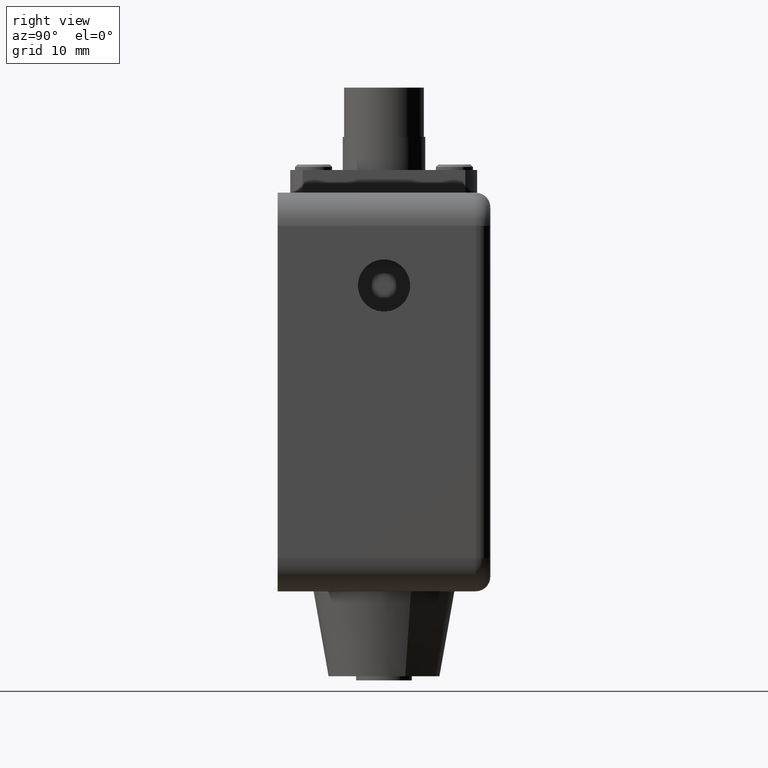
[diagram: clean part render]
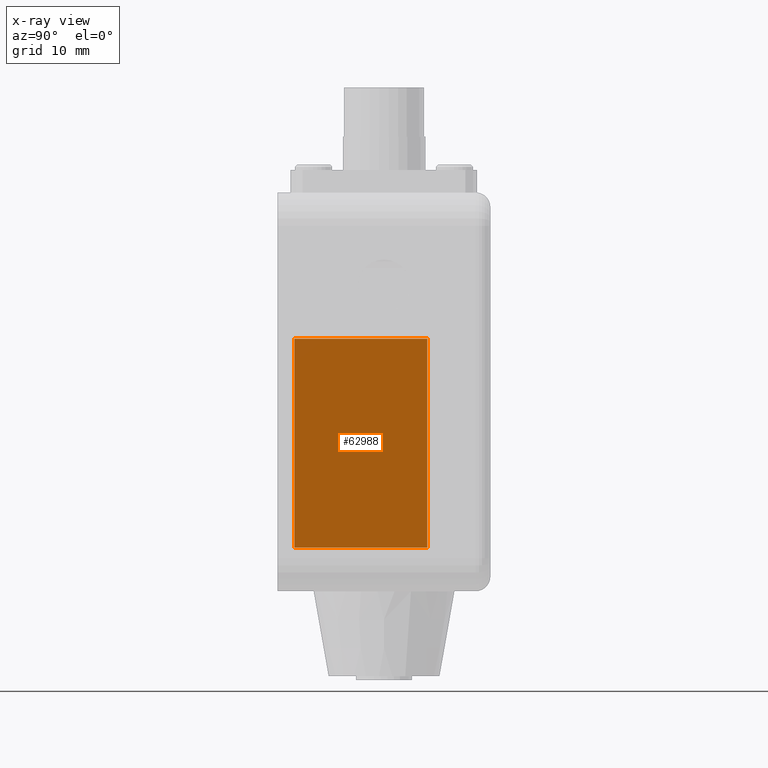
[diagram: x-ray — body ghosted, one internal face saturated and labeled with its STEP entity id]
A machine part, right view, then the same camera in x-ray: the body is ghosted and one INTERNAL B-rep face — a face not visible from any outside direction — is saturated and labeled: STEP entity #62988.
In plain terms, the highlighted planar face has unit normal (1, 0, 0).
Its self-contained STEP definition (entity closure, byte-faithful):
#22415 = AXIS2_PLACEMENT_3D ( 'NONE', #58890, #58894, #58895 ) ;
#23043 = LINE ( 'NONE', #26546, #23055 ) ;
#23055 = VECTOR ( 'NONE', #26554, 39.37007874015748100 ) ;
#23301 = LINE ( 'NONE', #26811, #23365 ) ;
#23331 = LINE ( 'NONE', #26796, #23337 ) ;
#23337 = VECTOR ( 'NONE', #26797, 39.37007874015748100 ) ;
#23361 = LINE ( 'NONE', #26824, #23370 ) ;
#23365 = VECTOR ( 'NONE', #26812, 39.37007874015748100 ) ;
#23368 = LINE ( 'NONE', #26826, #23374 ) ;
#23370 = VECTOR ( 'NONE', #26825, 39.37007874015748100 ) ;
#23372 = LINE ( 'NONE', #26828, #23378 ) ;
#23374 = VECTOR ( 'NONE', #26827, 39.37007874015748100 ) ;
#23378 = VECTOR ( 'NONE', #26829, 39.37007874015748100 ) ;
#26546 = CARTESIAN_POINT ( 'NONE',  ( 0.04000000000000007000, 0.06250000000000000000, -0.5499999999999998200 ) ) ;
#26554 = DIRECTION ( 'NONE',  ( -1.305022926909679700E-016, -0.0000000000000000000, 1.000000000000000000 ) ) ;
#26796 = CARTESIAN_POINT ( 'NONE',  ( 0.04000000000000007000, 0.5625000000000000000, -0.5499999999999998200 ) ) ;
#26797 = DIRECTION ( 'NONE',  ( -0.0000000000000000000, -1.000000000000000000, -0.0000000000000000000 ) ) ;
#26811 = CARTESIAN_POINT ( 'NONE',  ( 0.04000000000000007000, 0.06300000000000000000, -0.5799999999999998500 ) ) ;
#26812 = DIRECTION ( 'NONE',  ( -0.0000000000000000000, -1.000000000000000000, -0.0000000000000000000 ) ) ;
#26824 = CARTESIAN_POINT ( 'NONE',  ( 0.04000000000000007000, 0.06300000000000000000, -0.5499999999999998200 ) ) ;
#26825 = DIRECTION ( 'NONE',  ( 0.0000000000000000000, 0.0000000000000000000, -1.000000000000000000 ) ) ;
#26826 = CARTESIAN_POINT ( 'NONE',  ( 0.04000000000000007000, 0.5625000000000000000, -0.5499999999999998200 ) ) ;
#26827 = DIRECTION ( 'NONE',  ( -1.305022926909679700E-016, -0.0000000000000000000, 1.000000000000000000 ) ) ;
#26828 = CARTESIAN_POINT ( 'NONE',  ( 0.04000000000000017400, 0.5625000000000000000, -1.335000000000000200 ) ) ;
#26829 = DIRECTION ( 'NONE',  ( -0.0000000000000000000, -1.000000000000000000, -0.0000000000000000000 ) ) ;
#53853 = FACE_OUTER_BOUND ( 'NONE', #94925, .T. ) ;
#58890 = CARTESIAN_POINT ( 'NONE',  ( 0.04000000000000007000, 0.5625000000000000000, -0.5499999999999998200 ) ) ;
#58892 = PLANE ( 'NONE',  #22415 ) ;
#58894 = DIRECTION ( 'NONE',  ( 1.000000000000000000, -0.0000000000000000000, 1.305022926909679700E-016 ) ) ;
#58895 = DIRECTION ( 'NONE',  ( 1.305022926909679700E-016, 0.0000000000000000000, -1.000000000000000000 ) ) ;
#62988 = ADVANCED_FACE ( 'NONE', ( #53853 ), #58892, .F. ) ;
#67088 = EDGE_CURVE ( 'NONE', #93969, #93971, #23043, .T. ) ;
#67408 = EDGE_CURVE ( 'NONE', #94023, #94019, #23331, .T. ) ;
#67436 = EDGE_CURVE ( 'NONE', #94029, #93971, #23301, .T. ) ;
#67438 = EDGE_CURVE ( 'NONE', #94019, #94029, #23361, .T. ) ;
#67443 = EDGE_CURVE ( 'NONE', #94026, #94023, #23368, .T. ) ;
#67446 = EDGE_CURVE ( 'NONE', #94026, #93969, #23372, .T. ) ;
#83752 = ORIENTED_EDGE ( 'NONE', *, *, #67088, .T. ) ;
#83753 = ORIENTED_EDGE ( 'NONE', *, *, #67436, .F. ) ;
#83755 = ORIENTED_EDGE ( 'NONE', *, *, #67438, .F. ) ;
#83756 = ORIENTED_EDGE ( 'NONE', *, *, #67408, .F. ) ;
#83757 = ORIENTED_EDGE ( 'NONE', *, *, #67443, .F. ) ;
#83758 = ORIENTED_EDGE ( 'NONE', *, *, #67446, .T. ) ;
#88904 = CARTESIAN_POINT ( 'NONE',  ( 0.04000000000000017400, 0.06250000000000000000, -1.335000000000000200 ) ) ;
#88908 = CARTESIAN_POINT ( 'NONE',  ( 0.04000000000000007000, 0.06250000000000000000, -0.5799999999999998500 ) ) ;
#88992 = CARTESIAN_POINT ( 'NONE',  ( 0.04000000000000007000, 0.06299999999999998700, -0.5499999999999998200 ) ) ;
#88999 = CARTESIAN_POINT ( 'NONE',  ( 0.04000000000000007000, 0.5625000000000000000, -0.5499999999999998200 ) ) ;
#89004 = CARTESIAN_POINT ( 'NONE',  ( 0.04000000000000017400, 0.5625000000000000000, -1.335000000000000200 ) ) ;
#89009 = CARTESIAN_POINT ( 'NONE',  ( 0.04000000000000007000, 0.06300000000000000000, -0.5799999999999998500 ) ) ;
#93969 = VERTEX_POINT ( 'NONE', #88904 ) ;
#93971 = VERTEX_POINT ( 'NONE', #88908 ) ;
#94019 = VERTEX_POINT ( 'NONE', #88992 ) ;
#94023 = VERTEX_POINT ( 'NONE', #88999 ) ;
#94026 = VERTEX_POINT ( 'NONE', #89004 ) ;
#94029 = VERTEX_POINT ( 'NONE', #89009 ) ;
#94925 = EDGE_LOOP ( 'NONE', ( #83752, #83753, #83755, #83756, #83757, #83758 ) ) ;